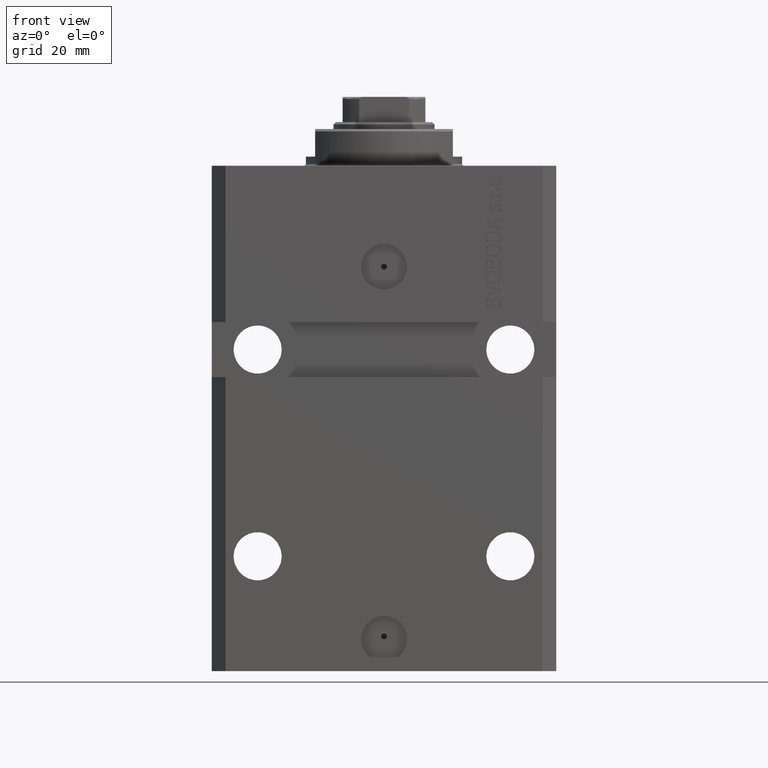
[diagram: clean part render]
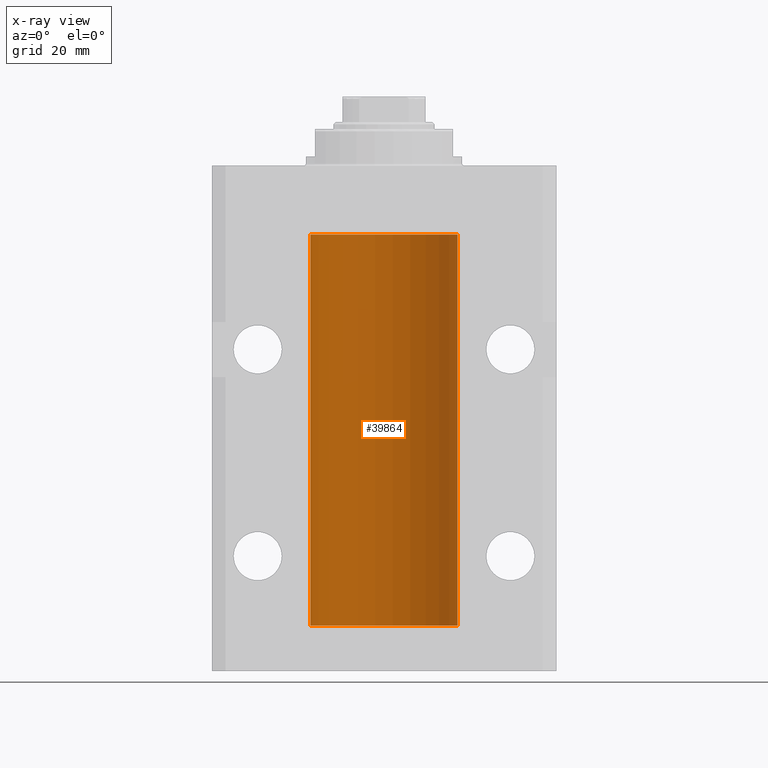
[diagram: x-ray — body ghosted, one internal face saturated and labeled with its STEP entity id]
A machine part, front view, then the same camera in x-ray: the body is ghosted and one INTERNAL B-rep face — a face not visible from any outside direction — is saturated and labeled: STEP entity #39864.
In plain terms, the highlighted cylindrical surface (partial cylindrical patch) has radius 16 mm, axis along (0, 0, 1).
Its self-contained STEP definition (entity closure, byte-faithful):
#358 = CARTESIAN_POINT ( 'NONE',  ( -15.98779057735153941, 0.6249419637998017141, -97.83670145863504786 ) ) ;
#362 = DIRECTION ( 'NONE',  ( -0.000000000000000000, -0.000000000000000000, 1.000000000000000000 ) ) ;
#1429 = DIRECTION ( 'NONE',  ( -0.000000000000000000, -0.000000000000000000, 1.000000000000000000 ) ) ;
#2081 = VERTEX_POINT ( 'NONE', #29757 ) ;
#2133 = CARTESIAN_POINT ( 'NONE',  ( -15.99934216141748244, 0.1636497843296417787, -21.39126528029306229 ) ) ;
#2327 = CARTESIAN_POINT ( 'NONE',  ( 16.00000000000000000, 0.000000000000000000, -100.0999999999999943 ) ) ;
#3534 = DIRECTION ( 'NONE',  ( -0.000000000000000000, -0.000000000000000000, 1.000000000000000000 ) ) ;
#3743 = ORIENTED_EDGE ( 'NONE', *, *, #9731, .F. ) ;
#3954 = CARTESIAN_POINT ( 'NONE',  ( -15.98778717651346604, 0.6250289588122097673, -98.08131585687051768 ) ) ;
#4658 = CARTESIAN_POINT ( 'NONE',  ( -16.00000000000013145, 3.685127046438747128E-13, -98.62500000000343903 ) ) ;
#4741 = CARTESIAN_POINT ( 'NONE',  ( -16.00000000000000000, 1.959434878635765131E-15, -100.0999999999999943 ) ) ;
#4789 = ORIENTED_EDGE ( 'NONE', *, *, #5675, .F. ) ;
#5675 = EDGE_CURVE ( 'NONE', #30217, #13572, #10729, .T. ) ;
#5720 = CYLINDRICAL_SURFACE ( 'NONE', #11552, 16.00000000000000000 ) ;
#5860 = ORIENTED_EDGE ( 'NONE', *, *, #30277, .F. ) ;
#6536 = VERTEX_POINT ( 'NONE', #41200 ) ;
#7560 = LINE ( 'NONE', #33142, #19134 ) ;
#9464 = ORIENTED_EDGE ( 'NONE', *, *, #24820, .T. ) ;
#9554 = AXIS2_PLACEMENT_3D ( 'NONE', #31427, #41985, #16844 ) ;
#9731 = EDGE_CURVE ( 'NONE', #12192, #6536, #34200, .T. ) ;
#9871 = VERTEX_POINT ( 'NONE', #21761 ) ;
#10729 = LINE ( 'NONE', #21725, #12681 ) ;
#10995 = ORIENTED_EDGE ( 'NONE', *, *, #35611, .T. ) ;
#11091 = CIRCLE ( 'NONE', #9554, 16.00000000000000000 ) ;
#11552 = AXIS2_PLACEMENT_3D ( 'NONE', #34890, #39199, #35122 ) ;
#12090 = CARTESIAN_POINT ( 'NONE',  ( -15.99707730059171240, 0.3150375992092294686, -97.45402333202572720 ) ) ;
#12192 = VERTEX_POINT ( 'NONE', #4741 ) ;
#12681 = VECTOR ( 'NONE', #36317, 1000.000000000000000 ) ;
#12683 = CARTESIAN_POINT ( 'NONE',  ( -15.99228023727724413, 0.5003781296993413674, -22.38347829554236057 ) ) ;
#12915 = CARTESIAN_POINT ( 'NONE',  ( -16.00000000000000000, 1.643679961284177128E-16, -21.37499999999999645 ) ) ;
#13572 = VERTEX_POINT ( 'NONE', #20706 ) ;
#13729 = DIRECTION ( 'NONE',  ( 1.000000000000000000, 0.000000000000000000, 0.000000000000000000 ) ) ;
#15431 = CARTESIAN_POINT ( 'NONE',  ( -15.99934216141748244, 0.1636497843296308152, -97.39126528029306940 ) ) ;
#16226 = CARTESIAN_POINT ( 'NONE',  ( -16.00000000000000000, 1.643679961284177128E-16, -21.37499999999999645 ) ) ;
#16498 = CARTESIAN_POINT ( 'NONE',  ( -16.00000000000000711, 0.08259886010189904093, -21.37500000000000000 ) ) ;
#16844 = DIRECTION ( 'NONE',  ( 1.000000000000000000, 0.000000000000000000, 0.000000000000000000 ) ) ;
#17777 = ORIENTED_EDGE ( 'NONE', *, *, #33825, .F. ) ;
#19134 = VECTOR ( 'NONE', #362, 1000.000000000000000 ) ;
#19354 = EDGE_CURVE ( 'NONE', #37458, #6536, #42232, .T. ) ;
#19495 = CARTESIAN_POINT ( 'NONE',  ( -15.98844267028590949, 0.6088369347963275002, -98.16324735024325321 ) ) ;
#20147 = EDGE_CURVE ( 'NONE', #27476, #2081, #7560, .T. ) ;
#20542 = FACE_OUTER_BOUND ( 'NONE', #40162, .T. ) ;
#20555 = CARTESIAN_POINT ( 'NONE',  ( -16.00000000000013145, 3.685127038166941002E-13, -22.62500000000341771 ) ) ;
#20706 = CARTESIAN_POINT ( 'NONE',  ( -16.00000000000000000, 1.959434878635765131E-15, -15.00000000000000000 ) ) ;
#21244 = ORIENTED_EDGE ( 'NONE', *, *, #20147, .T. ) ;
#21725 = CARTESIAN_POINT ( 'NONE',  ( -16.00000000000000000, 1.959434878635765131E-15, -100.0999999999999943 ) ) ;
#21761 = CARTESIAN_POINT ( 'NONE',  ( -16.00000000000013145, 3.685127038166941002E-13, -22.62500000000341771 ) ) ;
#22830 = CARTESIAN_POINT ( 'NONE',  ( -15.99999999999998934, 0.1631714642025804407, -98.62499999999987210 ) ) ;
#23655 = CARTESIAN_POINT ( 'NONE',  ( -15.99070653155267685, 0.5573233280232986475, -21.67348148680506625 ) ) ;
#24248 = DIRECTION ( 'NONE',  ( 0.000000000000000000, 0.000000000000000000, 1.000000000000000000 ) ) ;
#24820 = EDGE_CURVE ( 'NONE', #2081, #13572, #32280, .T. ) ;
#25050 = CARTESIAN_POINT ( 'NONE',  ( -16.00000000000000000, 1.959434878635765131E-15, -100.0999999999999943 ) ) ;
#26185 = VECTOR ( 'NONE', #3534, 1000.000000000000000 ) ;
#26422 = CARTESIAN_POINT ( 'NONE',  ( -16.00000000000000000, -1.303459030566954747E-14, -97.37500000000000000 ) ) ;
#26654 = CARTESIAN_POINT ( 'NONE',  ( -15.99548640841682712, 0.3843705577988784650, -97.50046628527007897 ) ) ;
#27010 = CARTESIAN_POINT ( 'NONE',  ( -15.99711699979842017, 0.3253759916140657737, -22.55856151623175521 ) ) ;
#27476 = VERTEX_POINT ( 'NONE', #2327 ) ;
#27485 = CARTESIAN_POINT ( 'NONE',  ( -15.99548640841683067, 0.3843705577988847377, -21.50046628527008608 ) ) ;
#27563 = CARTESIAN_POINT ( 'NONE',  ( -16.00000000000000000, -1.303459030566954747E-14, -97.37500000000000000 ) ) ;
#27720 = CARTESIAN_POINT ( 'NONE',  ( -15.99070426498503217, 0.5462220647145618058, -22.31460064614143590 ) ) ;
#29197 = AXIS2_PLACEMENT_3D ( 'NONE', #46291, #24248, #13729 ) ;
#29757 = CARTESIAN_POINT ( 'NONE',  ( 16.00000000000000000, 0.000000000000000000, -15.00000000000000000 ) ) ;
#30000 = CARTESIAN_POINT ( 'NONE',  ( -15.99228023727724057, 0.5003781296993360383, -98.38347829554236057 ) ) ;
#30147 = CARTESIAN_POINT ( 'NONE',  ( -16.00000000000000000, 1.959434878635765131E-15, -100.0999999999999943 ) ) ;
#30217 = VERTEX_POINT ( 'NONE', #16226 ) ;
#30277 = EDGE_CURVE ( 'NONE', #37458, #9871, #31988, .T. ) ;
#30279 = ORIENTED_EDGE ( 'NONE', *, *, #19354, .T. ) ;
#31072 = CARTESIAN_POINT ( 'NONE',  ( -15.98844267028591482, 0.6088369347963316081, -22.16324735024328518 ) ) ;
#31128 = B_SPLINE_CURVE_WITH_KNOTS ( 'NONE', 3,
 ( #12915, #16498, #2133, #46173, #27485, #23655, #42578, #38751, #31072, #27720, #12683, #27010, #42352, #20555 ),
 .UNSPECIFIED., .F., .F.,
 ( 4, 2, 2, 2, 2, 2, 4 ),
 ( 1.597328219370744179E-19, 0.0002442776652680942405, 0.0004885553305361882643, 0.0009771106610723839011, 0.001221388326340481665, 0.001465665991608579430, 0.001954221322144767369 ),
 .UNSPECIFIED. ) ;
#31427 = CARTESIAN_POINT ( 'NONE',  ( 0.000000000000000000, 0.000000000000000000, -100.0999999999999943 ) ) ;
#31988 = LINE ( 'NONE', #25050, #26185 ) ;
#32280 = CIRCLE ( 'NONE', #29197, 16.00000000000000000 ) ;
#33142 = CARTESIAN_POINT ( 'NONE',  ( 16.00000000000000000, 0.000000000000000000, -100.0999999999999943 ) ) ;
#33599 = CARTESIAN_POINT ( 'NONE',  ( -16.00000000000000711, 0.08259886010188650929, -97.37500000000000000 ) ) ;
#33825 = EDGE_CURVE ( 'NONE', #27476, #12192, #11091, .T. ) ;
#33833 = CARTESIAN_POINT ( 'NONE',  ( -15.99070653155267685, 0.5573233280232928744, -97.67348148680505915 ) ) ;
#34200 = LINE ( 'NONE', #30147, #40331 ) ;
#34890 = CARTESIAN_POINT ( 'NONE',  ( 0.000000000000000000, 0.000000000000000000, -100.0999999999999943 ) ) ;
#35122 = DIRECTION ( 'NONE',  ( 1.000000000000000000, 0.000000000000000000, 0.000000000000000000 ) ) ;
#35611 = EDGE_CURVE ( 'NONE', #30217, #9871, #31128, .T. ) ;
#36317 = DIRECTION ( 'NONE',  ( -0.000000000000000000, -0.000000000000000000, 1.000000000000000000 ) ) ;
#37458 = VERTEX_POINT ( 'NONE', #27563 ) ;
#38751 = CARTESIAN_POINT ( 'NONE',  ( -15.98778717651346071, 0.6250289588122140971, -22.08131585687052478 ) ) ;
#39199 = DIRECTION ( 'NONE',  ( -0.000000000000000000, -0.000000000000000000, 1.000000000000000000 ) ) ;
#39864 = ADVANCED_FACE ( 'NONE', ( #20542 ), #5720, .F. ) ;
#40162 = EDGE_LOOP ( 'NONE', ( #3743, #17777, #21244, #9464, #4789, #10995, #5860, #30279 ) ) ;
#40331 = VECTOR ( 'NONE', #1429, 1000.000000000000000 ) ;
#41040 = CARTESIAN_POINT ( 'NONE',  ( -15.99070426498503572, 0.5462220647145610286, -98.31460064614144301 ) ) ;
#41200 = CARTESIAN_POINT ( 'NONE',  ( -16.00000000000013145, 3.685127046438747128E-13, -98.62500000000343903 ) ) ;
#41985 = DIRECTION ( 'NONE',  ( 0.000000000000000000, 0.000000000000000000, 1.000000000000000000 ) ) ;
#42232 = B_SPLINE_CURVE_WITH_KNOTS ( 'NONE', 3,
 ( #26422, #33599, #15431, #12090, #26654, #33833, #358, #3954, #19495, #41040, #30000, #44631, #22830, #4658 ),
 .UNSPECIFIED., .F., .F.,
 ( 4, 2, 2, 2, 2, 2, 4 ),
 ( 1.003919637555167698E-18, 0.0002442776652680894158, 0.0004885553305361776391, 0.0009771106610723541940, 0.001221388326340463017, 0.001465665991608572274, 0.001954221322144760863 ),
 .UNSPECIFIED. ) ;
#42352 = CARTESIAN_POINT ( 'NONE',  ( -16.00000000000000000, 0.1631714642025800244, -22.62499999999985789 ) ) ;
#42578 = CARTESIAN_POINT ( 'NONE',  ( -15.98779057735153941, 0.6249419637998100407, -21.83670145863507273 ) ) ;
#44631 = CARTESIAN_POINT ( 'NONE',  ( -15.99711699979841661, 0.3253759916140614439, -98.55856151623174810 ) ) ;
#46173 = CARTESIAN_POINT ( 'NONE',  ( -15.99707730059171240, 0.3150375992092407373, -21.45402333202571654 ) ) ;
#46291 = CARTESIAN_POINT ( 'NONE',  ( 0.000000000000000000, 0.000000000000000000, -15.00000000000000000 ) ) ;